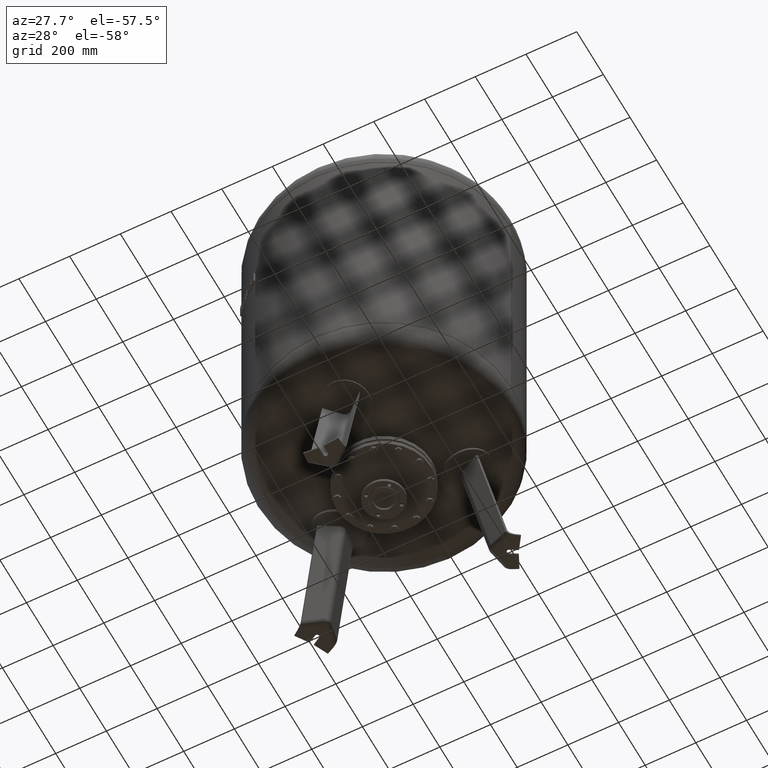
[diagram: clean part render]
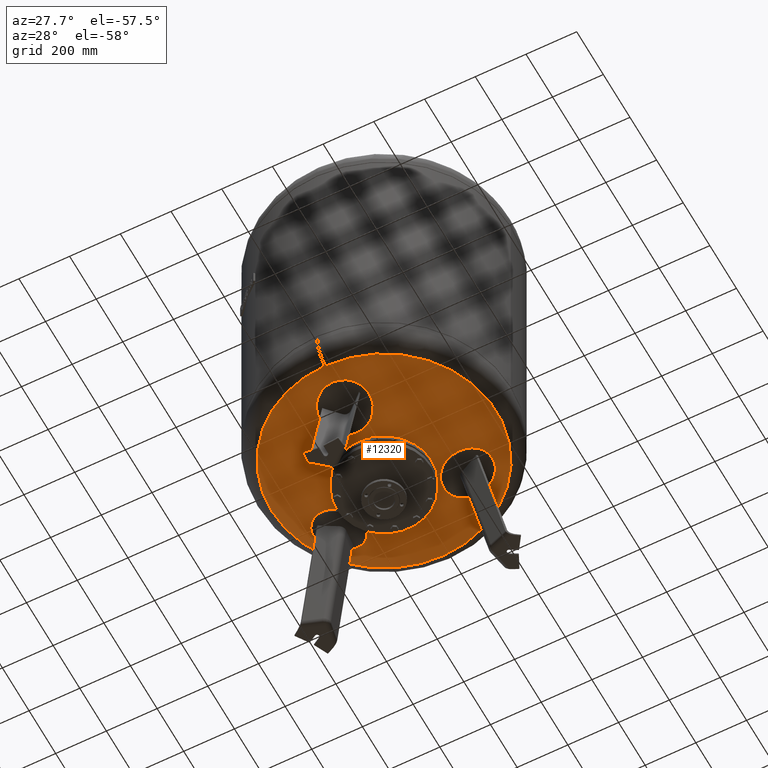
[diagram: same view with one face highlighted and labeled with its STEP entity id]
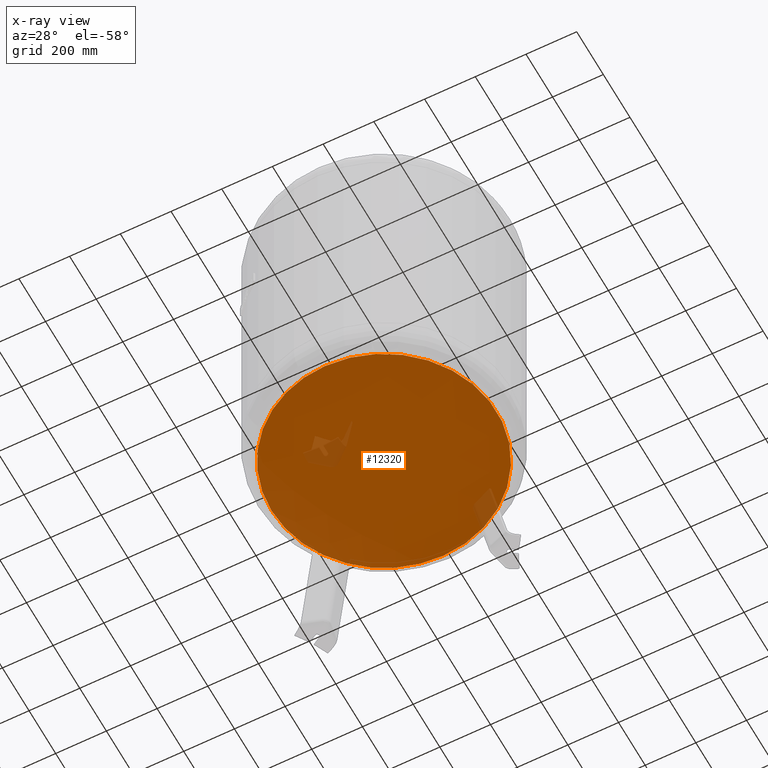
[diagram: x-ray of the same camera — body ghosted, the highlighted face saturated]
A machine part, auxiliary view. The second image highlights one B-rep face of the part: STEP entity #12320.
The next image is the same camera in x-ray: the body ghosted, the highlighted face saturated — about 4% of this face is hidden behind the body in this view.
In plain terms, the highlighted spherical surface has radius 1006 mm.
Its self-contained STEP definition (entity closure, byte-faithful):
#12259=CARTESIAN_POINT('',(1.211146E-014,-443.777777777777600,563.172616747466120));
#12260=VERTEX_POINT('',#12259);
#12276=CARTESIAN_POINT('',(-4.223385E-014,443.777777777777600,563.172616747466350));
#12277=VERTEX_POINT('',#12276);
#12285=CARTESIAN_POINT('',(-443.777777777777600,-1.895250E-014,563.172616747466240));
#12286=VERTEX_POINT('',#12285);
#12287=CARTESIAN_POINT('',(-1.384064E-014,-1.895250E-014,563.172616747466240));
#12288=DIRECTION('',(0.0,0.0,1.0));
#12289=DIRECTION('',(-1.0,0.0,0.0));
#12290=AXIS2_PLACEMENT_3D('',#12287,#12288,#12289);
#12291=CIRCLE('',#12290,443.777777777777600);
#12292=EDGE_CURVE('',#12277,#12286,#12291,.T.);
#12294=CARTESIAN_POINT('',(-1.384064E-014,-1.895250E-014,563.172616747466240));
#12295=DIRECTION('',(0.0,0.0,1.0));
#12296=DIRECTION('',(-1.0,0.0,0.0));
#12297=AXIS2_PLACEMENT_3D('',#12294,#12295,#12296);
#12298=CIRCLE('',#12297,443.777777777777600);
#12299=EDGE_CURVE('',#12286,#12260,#12298,.T.);
#12304=CARTESIAN_POINT('',(-2.223045E-013,-1.847992E-013,1466.0));
#12305=DIRECTION('',(0.0,-1.0,0.0));
#12306=DIRECTION('',(1.0,0.0,0.0));
#12307=AXIS2_PLACEMENT_3D('',#12304,#12305,#12306);
#12308=SPHERICAL_SURFACE('',#12307,1006.000000000000100);
#12309=ORIENTED_EDGE('',*,*,#12299,.F.);
#12310=ORIENTED_EDGE('',*,*,#12292,.F.);
#12311=CARTESIAN_POINT('',(-1.384064E-014,-1.895250E-014,563.172616747466240));
#12312=DIRECTION('',(0.0,0.0,1.0));
#12313=DIRECTION('',(-1.0,0.0,0.0));
#12314=AXIS2_PLACEMENT_3D('',#12311,#12312,#12313);
#12315=CIRCLE('',#12314,443.777777777777600);
#12316=EDGE_CURVE('',#12260,#12277,#12315,.T.);
#12317=ORIENTED_EDGE('',*,*,#12316,.F.);
#12318=EDGE_LOOP('',(#12309,#12310,#12317));
#12319=FACE_OUTER_BOUND('',#12318,.T.);
#12320=ADVANCED_FACE('',(#12319),#12308,.T.);